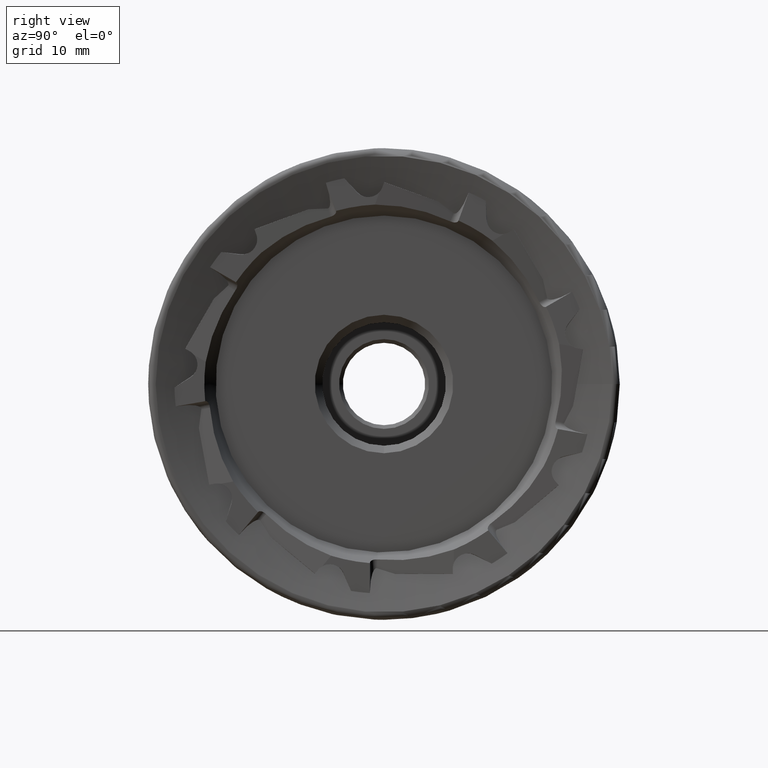
[diagram: clean part render]
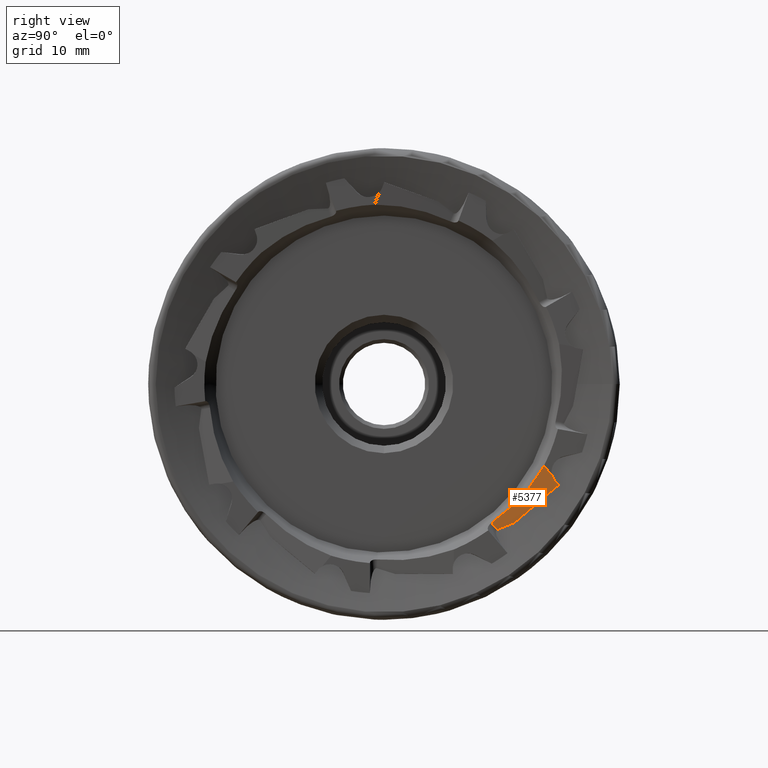
[diagram: same view with one face highlighted and labeled with its STEP entity id]
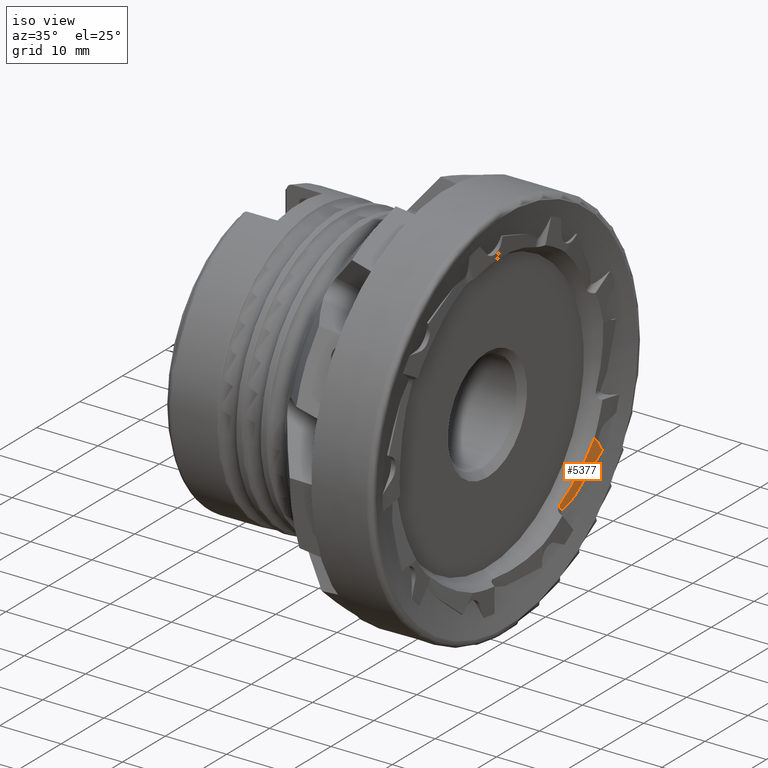
[diagram: same view with one face highlighted and labeled with its STEP entity id]
A machine part, right view. The second image highlights one B-rep face of the part: STEP entity #5377.
A second angle (iso view) of the same face is appended — the face is thin or edge-on in the first view.
In plain terms, the highlighted planar face has unit normal (-0.9962, 0.0668, 0.056).
Its self-contained STEP definition (entity closure, byte-faithful):
#80 = CARTESIAN_POINT ( 'NONE',  ( -0.8965752282825731900, 15.12660251828830100, -19.44651956772544900 ) ) ;
#398 = ORIENTED_EDGE ( 'NONE', *, *, #1775, .F. ) ;
#430 = CARTESIAN_POINT ( 'NONE',  ( -0.8965752282825731900, 25.01261750770230600, -31.22821344779976400 ) ) ;
#487 = ORIENTED_EDGE ( 'NONE', *, *, #6920, .F. ) ;
#846 = FACE_OUTER_BOUND ( 'NONE', #5829, .T. ) ;
#881 = CARTESIAN_POINT ( 'NONE',  ( -0.8965752282825731900, 14.37082506876463100, -18.54581907705393100 ) ) ;
#952 = CARTESIAN_POINT ( 'NONE',  ( -0.01226400228250892900, 22.86122067842192300, -12.93945216186509500 ) ) ;
#968 = CARTESIAN_POINT ( 'NONE',  ( -0.6859121996996974100, 17.45908118479779200, -18.48024843177417900 ) ) ;
#974 = CARTESIAN_POINT ( 'NONE',  ( -0.8274441649016751600, 15.91668522626018700, -19.15881457877413400 ) ) ;
#1315 = ORIENTED_EDGE ( 'NONE', *, *, #7109, .T. ) ;
#1447 = LINE ( 'NONE', #430, #4795 ) ;
#1610 = EDGE_CURVE ( 'NONE', #3302, #5162, #3290, .T. ) ;
#1641 = CARTESIAN_POINT ( 'NONE',  ( -0.8965752282825731900, 15.12660251828830100, -19.44651956772544900 ) ) ;
#1707 = VECTOR ( 'NONE', #5309, 1000.000000000000100 ) ;
#1775 = EDGE_CURVE ( 'NONE', #6350, #4946, #5687, .T. ) ;
#1807 = EDGE_CURVE ( 'NONE', #4946, #5522, #1447, .T. ) ;
#2323 = DIRECTION ( 'NONE',  ( -2.761105813713417800E-020, 0.6427876096865403600, -0.7660444431189770100 ) ) ;
#2382 = CARTESIAN_POINT ( 'NONE',  ( -0.01226400228250979600, 23.32539392130880900, -13.49263229166164600 ) ) ;
#2594 = CARTESIAN_POINT ( 'NONE',  ( -0.8965752282825731900, 25.01261750770230600, -31.22821344779976400 ) ) ;
#2744 = ORIENTED_EDGE ( 'NONE', *, *, #1610, .T. ) ;
#2857 = AXIS2_PLACEMENT_3D ( 'NONE', #2594, #3249, #8036 ) ;
#2946 = CARTESIAN_POINT ( 'NONE',  ( -0.01226400228250892900, 22.86122067842192600, -12.93945216186509700 ) ) ;
#3249 = DIRECTION ( 'NONE',  ( -0.9961946980917455500, 0.06676517241775099800, 0.05602263155122253600 ) ) ;
#3290 = LINE ( 'NONE', #6180, #6844 ) ;
#3302 = VERTEX_POINT ( 'NONE', #6516 ) ;
#3586 = VERTEX_POINT ( 'NONE', #6762 ) ;
#3591 = CARTESIAN_POINT ( 'NONE',  ( 1.084202172485504400E-015, 22.50501459283321600, -12.29686373331384400 ) ) ;
#4550 = ORIENTED_EDGE ( 'NONE', *, *, #1807, .F. ) ;
#4562 = EDGE_CURVE ( 'NONE', #8161, #6350, #8732, .T. ) ;
#4739 = EDGE_CURVE ( 'NONE', #3302, #3586, #5121, .T. ) ;
#4795 = VECTOR ( 'NONE', #5763, 1000.000000000000200 ) ;
#4878 = CARTESIAN_POINT ( 'NONE',  ( -0.5914968629148363900, 17.24704402265889100, -16.54865841865854000 ) ) ;
#4939 = CARTESIAN_POINT ( 'NONE',  ( -0.01226400228251084900, 22.70222613273469400, -12.74996984083946400 ) ) ;
#4946 = VERTEX_POINT ( 'NONE', #80 ) ;
#5121 =( BOUNDED_CURVE ( )  B_SPLINE_CURVE ( 3, ( #3591, #7683, #4939, #952 ),
 .UNSPECIFIED., .F., .F. ) 
 B_SPLINE_CURVE_WITH_KNOTS ( ( 4, 4 ),
 ( 2.772672901387842600, 3.141592653589793100 ),
 .UNSPECIFIED. ) 
 CURVE ( )  GEOMETRIC_REPRESENTATION_ITEM ( )  RATIONAL_B_SPLINE_CURVE ( ( 1.000000000000000000, 0.9886903074442857700, 0.9886903074442857700, 1.000000000000000000 ) ) 
 REPRESENTATION_ITEM ( '' )  );
#5162 = VERTEX_POINT ( 'NONE', #8442 ) ;
#5259 = PLANE ( 'NONE',  #2857 ) ;
#5309 = DIRECTION ( 'NONE',  ( -0.08715392338843719300, -0.7589602002510330600, -0.6452779308739097200 ) ) ;
#5343 = CARTESIAN_POINT ( 'NONE',  ( -0.8965752282825731900, 14.37082506876463100, -18.54581907705393100 ) ) ;
#5377 = ADVANCED_FACE ( 'NONE', ( #846 ), #5259, .F. ) ;
#5382 = LINE ( 'NONE', #2946, #6998 ) ;
#5486 = ORIENTED_EDGE ( 'NONE', *, *, #4739, .F. ) ;
#5522 = VERTEX_POINT ( 'NONE', #5343 ) ;
#5665 = CARTESIAN_POINT ( 'NONE',  ( -0.7571746982931087900, 16.69471463594847900, -18.83650193673482000 ) ) ;
#5687 =( BOUNDED_CURVE ( )  B_SPLINE_CURVE ( 3, ( #8413, #5665, #974, #1641 ),
 .UNSPECIFIED., .F., .F. ) 
 B_SPLINE_CURVE_WITH_KNOTS ( ( 4, 4 ),
 ( 1.847234156644323800, 1.938209428403820900 ),
 .UNSPECIFIED. ) 
 CURVE ( )  GEOMETRIC_REPRESENTATION_ITEM ( )  RATIONAL_B_SPLINE_CURVE ( ( 1.000000000000000000, 0.9993104105768867400, 0.9993104105768867400, 1.000000000000000000 ) ) 
 REPRESENTATION_ITEM ( '' )  );
#5763 = DIRECTION ( 'NONE',  ( -0.0000000000000000000, -0.6427876096865404700, 0.7660444431189771300 ) ) ;
#5829 = EDGE_LOOP ( 'NONE', ( #398, #8034, #487, #5486, #2744, #1315, #4550 ) ) ;
#6180 = CARTESIAN_POINT ( 'NONE',  ( 1.084202172485504400E-015, 32.86296569893371400, -24.64098917592424000 ) ) ;
#6350 = VERTEX_POINT ( 'NONE', #968 ) ;
#6516 = CARTESIAN_POINT ( 'NONE',  ( 1.084202172485504400E-015, 22.50501459283321600, -12.29686373331384400 ) ) ;
#6762 = CARTESIAN_POINT ( 'NONE',  ( -0.01226400228250892900, 22.86122067842192300, -12.93945216186509500 ) ) ;
#6844 = VECTOR ( 'NONE', #8279, 1000.000000000000200 ) ;
#6920 = EDGE_CURVE ( 'NONE', #3586, #8161, #5382, .T. ) ;
#6998 = VECTOR ( 'NONE', #2323, 1000.000000000000100 ) ;
#7109 = EDGE_CURVE ( 'NONE', #5162, #5522, #7931, .T. ) ;
#7360 = CARTESIAN_POINT ( 'NONE',  ( -1.024542951644303200, 14.51019198606858200, -20.98743276094325000 ) ) ;
#7604 = CARTESIAN_POINT ( 'NONE',  ( -0.2877136687233591800, 19.61631961565665300, -13.97037692862902800 ) ) ;
#7683 = CARTESIAN_POINT ( 'NONE',  ( -0.008129238615812505600, 22.58213254936597600, -12.53332349441770100 ) ) ;
#7931 =( BOUNDED_CURVE ( )  B_SPLINE_CURVE ( 3, ( #8308, #7604, #4878, #881 ),
 .UNSPECIFIED., .F., .F. ) 
 B_SPLINE_CURVE_WITH_KNOTS ( ( 4, 4 ),
 ( 1.220152182206526200, 1.662115677365302100 ),
 .UNSPECIFIED. ) 
 CURVE ( )  GEOMETRIC_REPRESENTATION_ITEM ( )  RATIONAL_B_SPLINE_CURVE ( ( 1.000000000000000000, 0.9837884884413696800, 0.9837884884413696800, 1.000000000000000000 ) ) 
 REPRESENTATION_ITEM ( '' )  );
#8034 = ORIENTED_EDGE ( 'NONE', *, *, #4562, .F. ) ;
#8036 = DIRECTION ( 'NONE',  ( -0.06687019211193348500, -0.9977616836734678500, 0.0000000000000000000 ) ) ;
#8161 = VERTEX_POINT ( 'NONE', #2382 ) ;
#8279 = DIRECTION ( 'NONE',  ( -0.0000000000000000000, -0.6427876096865404700, 0.7660444431189771300 ) ) ;
#8308 = CARTESIAN_POINT ( 'NONE',  ( 1.084202172485502700E-015, 21.36342323177351300, -10.93636812749643500 ) ) ;
#8413 = CARTESIAN_POINT ( 'NONE',  ( -0.6859121996996974100, 17.45908118479779200, -18.48024843177417900 ) ) ;
#8442 = CARTESIAN_POINT ( 'NONE',  ( 1.084202172485502700E-015, 21.36342323177351300, -10.93636812749643500 ) ) ;
#8732 = LINE ( 'NONE', #7360, #1707 ) ;